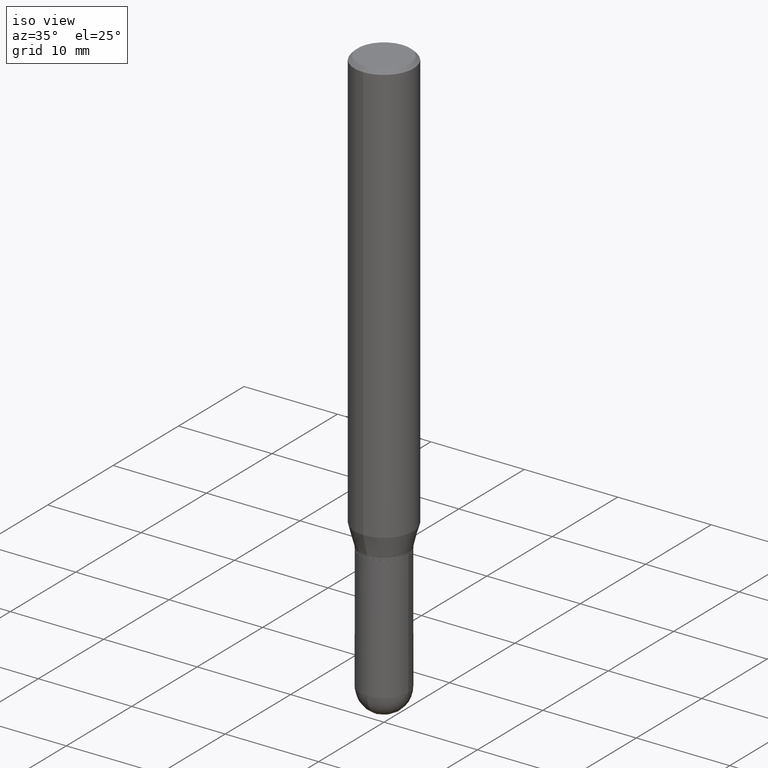
[diagram: clean part render]
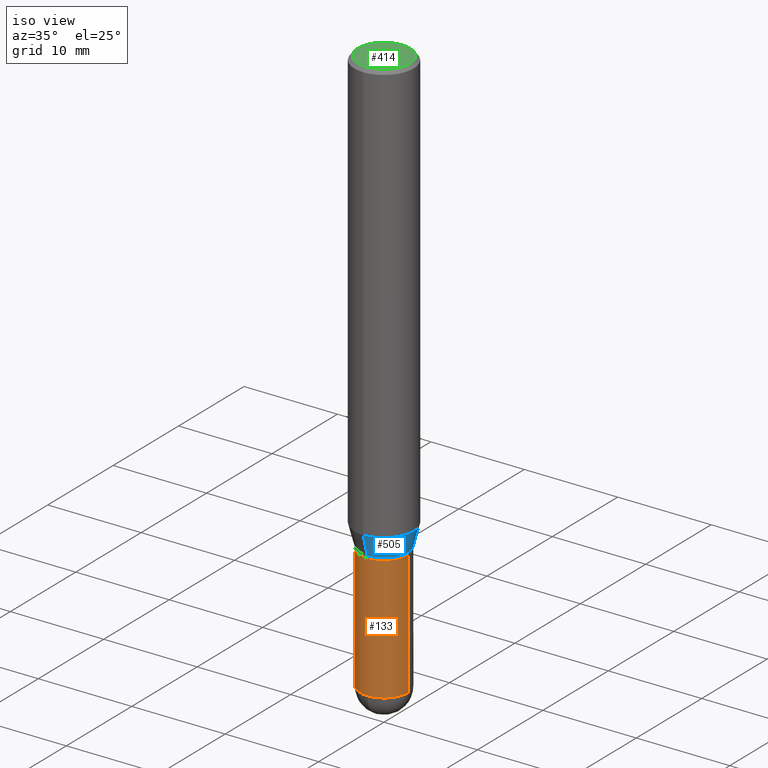
[diagram: same view with three faces highlighted in distinct colors, each labeled with its STEP entity id]
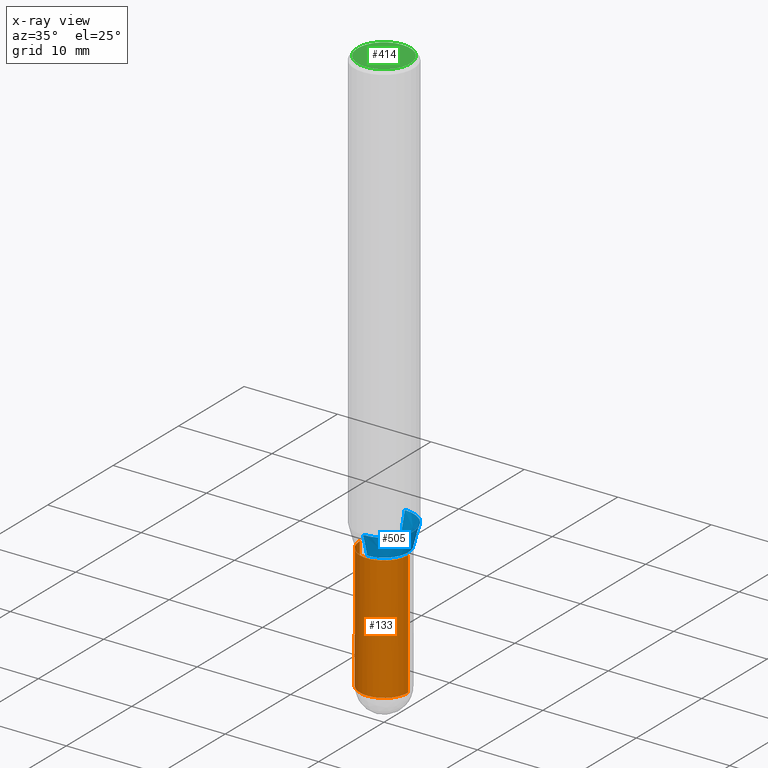
[diagram: x-ray of the same camera — body ghosted, the three highlighted faces saturated]
A machine part, iso view with three faces highlighted in distinct colors.
The next image is the same camera in x-ray (body ghosted, the three faces saturated) — at least one of them is partly hidden behind the body in this view.
Their STEP definitions:

[orange] entity #133 — the highlighted cylindrical surface (edge-blend (fillet) strip) has radius 2.5794 mm, axis along (-0, 0, 1).
#2 = CIRCLE ( 'NONE', #101, 0.1015500000000000985 ) ;
#14 = CARTESIAN_POINT ( 'NONE',  ( -0.1015500000000000708, 7.215561481643822416E-16, -4.995178584153860605E-30 ) ) ;
#25 = VECTOR ( 'NONE', #346, 39.37007874015748143 ) ;
#26 = CARTESIAN_POINT ( 'NONE',  ( -0.1015500000000000708, -6.738779315575238500E-15, -1.875000000000000000 ) ) ;
#36 = EDGE_CURVE ( 'NONE', #248, #203, #129, .T. ) ;
#38 = CARTESIAN_POINT ( 'NONE',  ( -0.1015500000000000985, -6.738779315575238500E-15, -2.398450000000000415 ) ) ;
#41 = AXIS2_PLACEMENT_3D ( 'NONE', #254, #293, #53 ) ;
#53 = DIRECTION ( 'NONE',  ( 1.000000000000000000, -6.982962677686258033E-15, 0.000000000000000000 ) ) ;
#76 = CARTESIAN_POINT ( 'NONE',  ( 0.1015500000000000708, -7.255647370249939489E-15, -1.875000000000000000 ) ) ;
#101 = AXIS2_PLACEMENT_3D ( 'NONE', #356, #273, #503 ) ;
#103 = CARTESIAN_POINT ( 'NONE',  ( 0.1015500000000000985, -8.169455323658661228E-15, -2.398450000000000415 ) ) ;
#123 = ORIENTED_EDGE ( 'NONE', *, *, #438, .T. ) ;
#128 = ORIENTED_EDGE ( 'NONE', *, *, #185, .T. ) ;
#129 = CIRCLE ( 'NONE', #316, 0.1015500000000000708 ) ;
#133 = ADVANCED_FACE ( 'NONE', ( #424 ), #268, .T. ) ;
#135 = ORIENTED_EDGE ( 'NONE', *, *, #403, .F. ) ;
#142 = DIRECTION ( 'NONE',  ( 1.000000000000000000, -6.982962677686269866E-15, 0.000000000000000000 ) ) ;
#152 = CARTESIAN_POINT ( 'NONE',  ( 0.1015500000000000708, -7.091198599190408807E-16, 4.951757515820776576E-30 ) ) ;
#156 = LINE ( 'NONE', #152, #25 ) ;
#174 = ORIENTED_EDGE ( 'NONE', *, *, #194, .T. ) ;
#185 = EDGE_CURVE ( 'NONE', #367, #279, #2, .T. ) ;
#194 = EDGE_CURVE ( 'NONE', #399, #203, #156, .T. ) ;
#201 = EDGE_LOOP ( 'NONE', ( #135, #128, #123, #174, #244 ) ) ;
#203 = VERTEX_POINT ( 'NONE', #76 ) ;
#216 = DIRECTION ( 'NONE',  ( -2.445468806185136597E-29, 3.491481338843145583E-15, 1.000000000000000000 ) ) ;
#223 = VECTOR ( 'NONE', #447, 39.37007874015748143 ) ;
#244 = ORIENTED_EDGE ( 'NONE', *, *, #36, .F. ) ;
#248 = VERTEX_POINT ( 'NONE', #26 ) ;
#254 = CARTESIAN_POINT ( 'NONE',  ( 5.865334658194741045E-29, -8.374143417148343763E-15, -2.398450000000000415 ) ) ;
#268 = CYLINDRICAL_SURFACE ( 'NONE', #365, 0.1015500000000000708 ) ;
#273 = DIRECTION ( 'NONE',  ( -2.445468806185136597E-29, 3.491481338843145583E-15, 1.000000000000000000 ) ) ;
#275 = DIRECTION ( 'NONE',  ( -2.445468806185136597E-29, 3.491481338843145583E-15, 1.000000000000000000 ) ) ;
#279 = VERTEX_POINT ( 'NONE', #477 ) ;
#293 = DIRECTION ( 'NONE',  ( -2.445468806185136597E-29, 3.491481338843145583E-15, 1.000000000000000000 ) ) ;
#316 = AXIS2_PLACEMENT_3D ( 'NONE', #450, #216, #142 ) ;
#346 = DIRECTION ( 'NONE',  ( -2.445468806185136877E-29, 3.491481338843145188E-15, 1.000000000000000000 ) ) ;
#351 = CIRCLE ( 'NONE', #41, 0.1015500000000000985 ) ;
#356 = CARTESIAN_POINT ( 'NONE',  ( 5.865334658194741045E-29, -8.374143417148343763E-15, -2.398450000000000415 ) ) ;
#365 = AXIS2_PLACEMENT_3D ( 'NONE', #431, #275, #389 ) ;
#367 = VERTEX_POINT ( 'NONE', #38 ) ;
#389 = DIRECTION ( 'NONE',  ( 1.000000000000000000, -6.982962677686266711E-15, 4.876176775795936353E-29 ) ) ;
#399 = VERTEX_POINT ( 'NONE', #103 ) ;
#403 = EDGE_CURVE ( 'NONE', #367, #248, #409, .T. ) ;
#409 = LINE ( 'NONE', #14, #223 ) ;
#424 = FACE_OUTER_BOUND ( 'NONE', #201, .T. ) ;
#431 = CARTESIAN_POINT ( 'NONE',  ( 0.000000000000000000, 0.000000000000000000, 0.000000000000000000 ) ) ;
#438 = EDGE_CURVE ( 'NONE', #279, #399, #351, .T. ) ;
#447 = DIRECTION ( 'NONE',  ( -2.445468806185136877E-29, 3.491481338843145188E-15, 1.000000000000000000 ) ) ;
#450 = CARTESIAN_POINT ( 'NONE',  ( 4.585254011597131119E-29, -6.546527510330898707E-15, -1.875000000000000000 ) ) ;
#477 = CARTESIAN_POINT ( 'NONE',  ( -7.215561481643230770E-16, -0.1015500000000083697, -2.398449999999999971 ) ) ;
#503 = DIRECTION ( 'NONE',  ( 1.000000000000000000, -6.982962677686258033E-15, 0.000000000000000000 ) ) ;

[blue] entity #505 — the highlighted conical surface has half-angle 15 deg.
#1 = ORIENTED_EDGE ( 'NONE', *, *, #157, .T. ) ;
#10 = VERTEX_POINT ( 'NONE', #55 ) ;
#42 = DIRECTION ( 'NONE',  ( -6.982962677686266711E-15, -1.000000000000000000, 2.690150658458161914E-15 ) ) ;
#43 = EDGE_LOOP ( 'NONE', ( #148, #1, #95, #420 ) ) ;
#55 = CARTESIAN_POINT ( 'NONE',  ( 8.048672839322978639E-16, 0.1015499999999934788, -1.865000000000000213 ) ) ;
#66 = CIRCLE ( 'NONE', #266, 0.1250000000000000000 ) ;
#68 = AXIS2_PLACEMENT_3D ( 'NONE', #398, #165, #42 ) ;
#90 = DIRECTION ( 'NONE',  ( -2.445484535067431049E-29, 3.491458814188467583E-15, 1.000000000000000000 ) ) ;
#92 = VECTOR ( 'NONE', #349, 39.37007874015748143 ) ;
#93 = AXIS2_PLACEMENT_3D ( 'NONE', #376, #90, #219 ) ;
#95 = ORIENTED_EDGE ( 'NONE', *, *, #205, .F. ) ;
#148 = ORIENTED_EDGE ( 'NONE', *, *, #388, .T. ) ;
#155 = CIRCLE ( 'NONE', #68, 0.1015499999999999875 ) ;
#157 = EDGE_CURVE ( 'NONE', #10, #374, #225, .T. ) ;
#165 = DIRECTION ( 'NONE',  ( -2.445484535067431049E-29, 3.491458814188467583E-15, 1.000000000000000000 ) ) ;
#188 = LINE ( 'NONE', #508, #418 ) ;
#205 = EDGE_CURVE ( 'NONE', #206, #374, #66, .T. ) ;
#206 = VERTEX_POINT ( 'NONE', #465 ) ;
#219 = DIRECTION ( 'NONE',  ( -6.982962677686266711E-15, -1.000000000000000000, 2.690150658458161914E-15 ) ) ;
#225 = LINE ( 'NONE', #433, #92 ) ;
#234 = DIRECTION ( 'NONE',  ( -1.807323732225330534E-15, -0.2588190451025182415, 0.9659258262890689783 ) ) ;
#237 = EDGE_CURVE ( 'NONE', #493, #206, #188, .T. ) ;
#239 = CARTESIAN_POINT ( 'NONE',  ( 8.881784197001684225E-16, 0.1249999999999937828, -1.777483408562510636 ) ) ;
#266 = AXIS2_PLACEMENT_3D ( 'NONE', #435, #315, #311 ) ;
#311 = DIRECTION ( 'NONE',  ( -6.982962677686265922E-15, -1.000000000000000000, 4.370956789862821150E-15 ) ) ;
#315 = DIRECTION ( 'NONE',  ( -2.445484535067431049E-29, 3.491458814188467583E-15, 1.000000000000000000 ) ) ;
#349 = DIRECTION ( 'NONE',  ( 1.839019923739600710E-15, 0.2588190451025250138, 0.9659258262890670910 ) ) ;
#374 = VERTEX_POINT ( 'NONE', #239 ) ;
#376 = CARTESIAN_POINT ( 'NONE',  ( 4.560828657900758226E-29, -6.511570688461491770E-15, -1.864999999999999991 ) ) ;
#388 = EDGE_CURVE ( 'NONE', #493, #10, #155, .T. ) ;
#398 = CARTESIAN_POINT ( 'NONE',  ( 4.560828657900758226E-29, -6.511570688461491770E-15, -1.864999999999999991 ) ) ;
#415 = CARTESIAN_POINT ( 'NONE',  ( -7.091198599189946337E-16, -0.1015500000000064962, -1.864999999999999547 ) ) ;
#418 = VECTOR ( 'NONE', #234, 39.37007874015748143 ) ;
#420 = ORIENTED_EDGE ( 'NONE', *, *, #237, .F. ) ;
#433 = CARTESIAN_POINT ( 'NONE',  ( 7.215561481644272066E-16, 0.1015499999999934788, -1.865000000000000213 ) ) ;
#434 = CONICAL_SURFACE ( 'NONE', #93, 0.1015499999999999875, 0.2617993877991502960 ) ;
#435 = CARTESIAN_POINT ( 'NONE',  ( 4.346808186978562239E-29, -6.206010113899336320E-15, -1.777483408562509970 ) ) ;
#451 = FACE_OUTER_BOUND ( 'NONE', #43, .T. ) ;
#465 = CARTESIAN_POINT ( 'NONE',  ( -8.728703347107399515E-16, -0.1250000000000062172, -1.777483408562509526 ) ) ;
#493 = VERTEX_POINT ( 'NONE', #415 ) ;
#505 = ADVANCED_FACE ( 'NONE', ( #451 ), #434, .T. ) ;
#508 = CARTESIAN_POINT ( 'NONE',  ( -7.091198599189946337E-16, -0.1015500000000064962, -1.864999999999999547 ) ) ;

[green] entity #414 — the highlighted planar face has unit normal (0, -0, -1).
#54 = VERTEX_POINT ( 'NONE', #498 ) ;
#91 = EDGE_CURVE ( 'NONE', #370, #54, #308, .T. ) ;
#108 = CARTESIAN_POINT ( 'NONE',  ( 3.975789068314252337E-48, -5.676299967089012762E-34, -1.625767413902138821E-19 ) ) ;
#125 = ORIENTED_EDGE ( 'NONE', *, *, #91, .T. ) ;
#141 = PLANE ( 'NONE',  #146 ) ;
#146 = AXIS2_PLACEMENT_3D ( 'NONE', #261, #287, #419 ) ;
#231 = DIRECTION ( 'NONE',  ( -2.445484535067431049E-29, 3.491458814188467583E-15, 1.000000000000000000 ) ) ;
#261 = CARTESIAN_POINT ( 'NONE',  ( 7.681258945454894762E-16, 0.1100000000000000283, -3.841417579314265946E-16 ) ) ;
#276 = CARTESIAN_POINT ( 'NONE',  ( 3.975789068314252337E-48, -5.676299967089012762E-34, -1.625767413902138821E-19 ) ) ;
#278 = DIRECTION ( 'NONE',  ( -6.982962677686265922E-15, -1.000000000000000000, 3.491458814188467188E-15 ) ) ;
#287 = DIRECTION ( 'NONE',  ( 2.445484535067431049E-29, -3.491458814188467188E-15, -1.000000000000000000 ) ) ;
#290 = AXIS2_PLACEMENT_3D ( 'NONE', #276, #394, #278 ) ;
#306 = DIRECTION ( 'NONE',  ( -6.982962677686265922E-15, -1.000000000000000000, 3.491458814188467188E-15 ) ) ;
#308 = CIRCLE ( 'NONE', #479, 0.1100000000000000283 ) ;
#320 = CARTESIAN_POINT ( 'NONE',  ( 8.204981146281365554E-16, 0.1100000000000000283, -3.842230463021216703E-16 ) ) ;
#338 = EDGE_LOOP ( 'NONE', ( #125, #401 ) ) ;
#354 = EDGE_CURVE ( 'NONE', #54, #370, #390, .T. ) ;
#370 = VERTEX_POINT ( 'NONE', #320 ) ;
#390 = CIRCLE ( 'NONE', #290, 0.1100000000000000283 ) ;
#394 = DIRECTION ( 'NONE',  ( -2.445484535067431049E-29, 3.491458814188467583E-15, 1.000000000000000000 ) ) ;
#401 = ORIENTED_EDGE ( 'NONE', *, *, #354, .T. ) ;
#414 = ADVANCED_FACE ( 'NONE', ( #454 ), #141, .F. ) ;
#419 = DIRECTION ( 'NONE',  ( 6.982962677686265922E-15, 1.000000000000000000, -3.491458814188467188E-15 ) ) ;
#454 = FACE_OUTER_BOUND ( 'NONE', #338, .T. ) ;
#479 = AXIS2_PLACEMENT_3D ( 'NONE', #108, #231, #306 ) ;
#498 = CARTESIAN_POINT ( 'NONE',  ( -8.061085147381547495E-16, -0.1100000000000000283, 3.838978928193412689E-16 ) ) ;